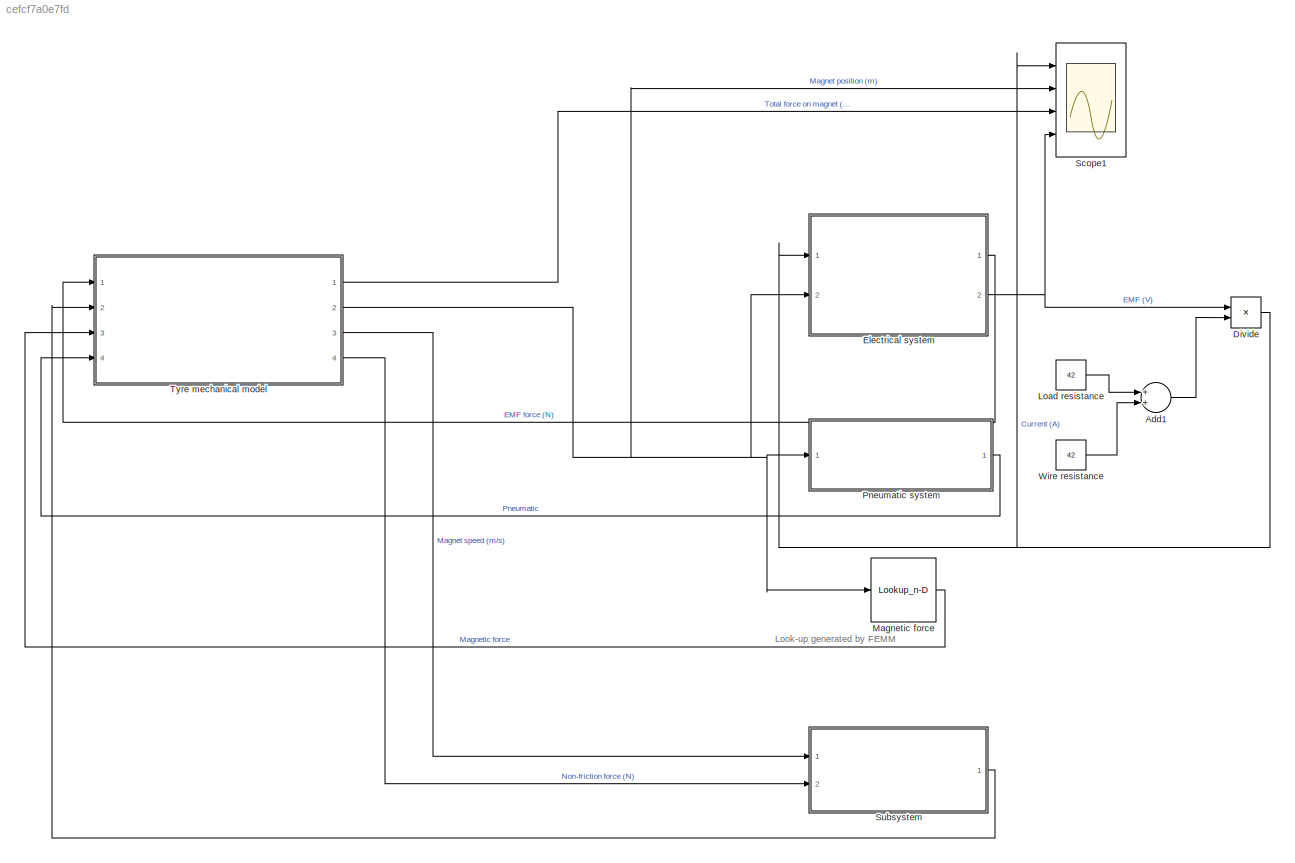
MODEL slx_cefcf7a0e7fd
KIND model
CONFIG AbsTol = auto
CONFIG FixedStep = 0.0001
CONFIG MaxStep = 0.001
CONFIG MinStep = auto
CONFIG RelTol = 1e-3
CONFIG SampleTimeConstraint = Unconstrained
CONFIG Solver = ode4
CONFIG SolverMode = Auto
CONFIG SolverName = ode4
CONFIG StartTime = 0
CONFIG StopTime = 1
BLOCK [Sum] Add1
  InputSameDT = off
  OutDataTypeStr = Inherit: Inherit via internal rule
  Ports = [2, 1]
  SaturateOnIntegerOverflow = off
BLOCK [Product] Divide
  InputSameDT = off
  Inputs = */
  OutDataTypeStr = Inherit: Inherit via internal rule
  Ports = [2, 1]
  RndMeth = Floor
  SaturateOnIntegerOverflow = off
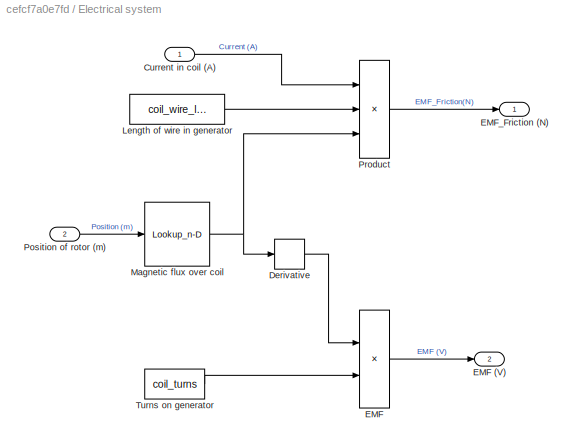
BLOCK [SubSystem] Electrical system
  Ports = [2, 2]
  RequestExecContextInheritance = off
BLOCK [Inport] Electrical system/Current in coil (A)
  IconDisplay = Port number
BLOCK [Derivative] Electrical system/Derivative
BLOCK [Product] Electrical system/EMF
  InputSameDT = off
  OutDataTypeStr = Inherit: Inherit via internal rule
  Ports = [2, 1]
  RndMeth = Floor
  SaturateOnIntegerOverflow = off
BLOCK [Outport] Electrical system/EMF (V)
  IconDisplay = Port number
  Port = 2
BLOCK [Outport] Electrical system/EMF_Friction (N)
  IconDisplay = Port number
BLOCK [Constant] Electrical system/Length of wire in generator
  Value = coil_wire_length
BLOCK [Lookup_n-D] Electrical system/Magnetic flux over coil
  BreakpointsForDimension1 = [-0.0087:0.0001:0.0086]
  DiagnosticForOutOfRangeInput = Error
  InitFcn = %Import the data from csv\nflux_linkage = csvread('linkage.csv');\nflux_linkage = flux_linkage(:, 1);
  InternalRulePriority = Speed
  NumberOfTableDimensions = 1
  Ports = [1, 1]
  RndMeth = Simplest
  Table = flux_linkage
BLOCK [Inport] Electrical system/Position of rotor (m)
  IconDisplay = Port number
  Port = 2
BLOCK [Product] Electrical system/Product
  InputSameDT = off
  Inputs = 3
  OutDataTypeStr = Inherit: Inherit via internal rule
  Ports = [3, 1]
  RndMeth = Floor
  SaturateOnIntegerOverflow = off
BLOCK [Constant] Electrical system/Turns on generator
  Value = coil_turns
BLOCK [Constant] Load resistance
  Value = 42
BLOCK [Lookup_n-D] Magnetic force
  BreakpointsForDimension1 = [-0.0087:0.0001:0.0086]
  DiagnosticForOutOfRangeInput = Error
  ExtrapMethod = Clip
  InitFcn = %Import the data from csv\ndata = csvread('force.csv');\ndata = data(:, 1);
  InternalRulePriority = Speed
  NumberOfTableDimensions = 1
  Ports = [1, 1]
  RndMeth = Simplest
  Table = data
  UseLastTableValue = on
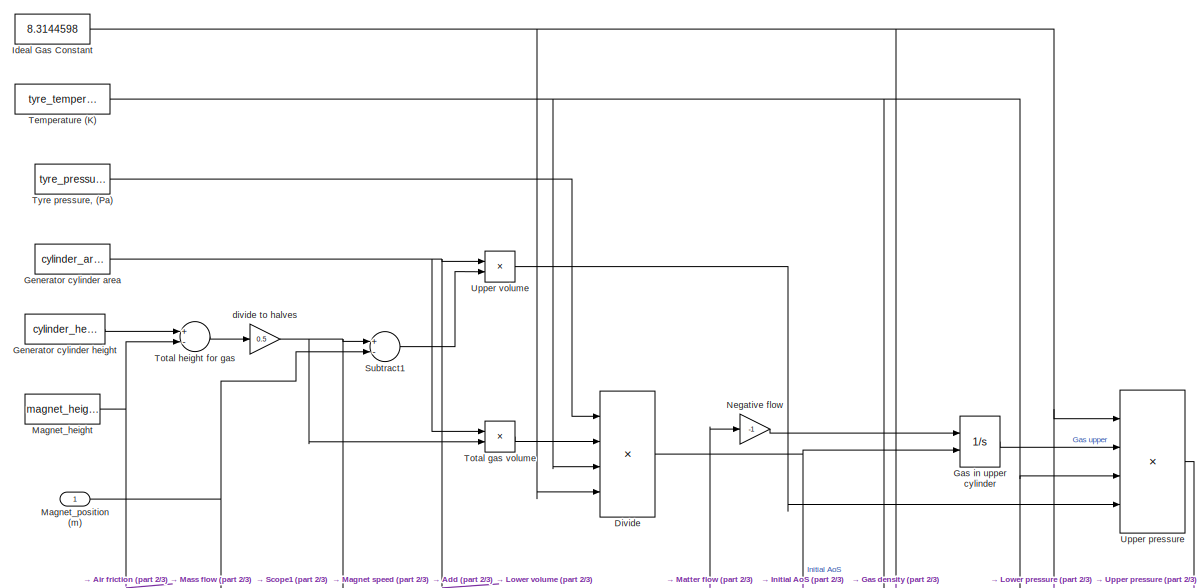
[diagram: Pneumatic system - part 1/3, top center region]
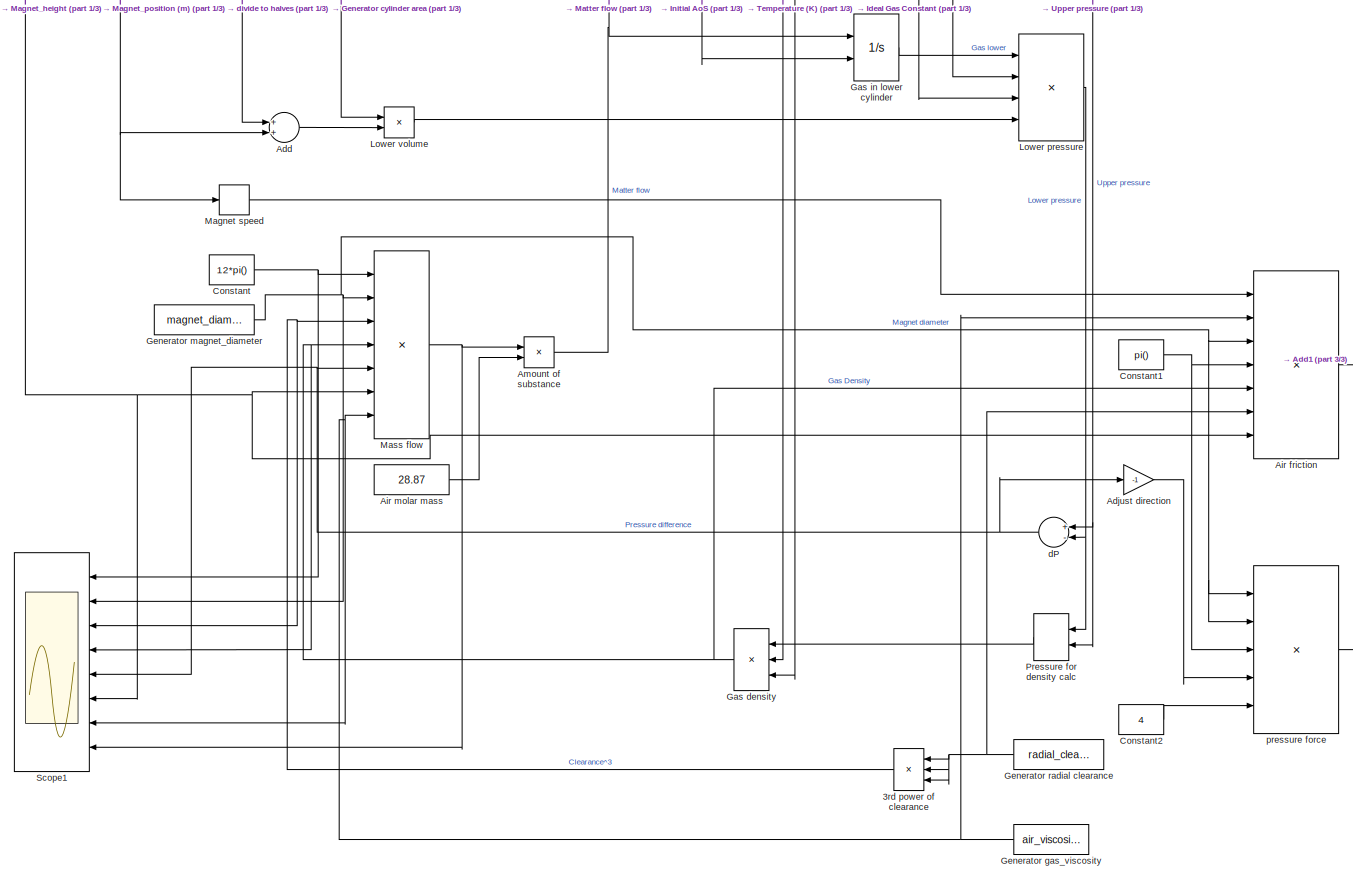
[diagram: Pneumatic system - part 2/3, full width, bottom band]
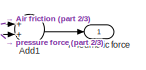
[diagram: Pneumatic system - part 3/3, bottom right region]
BLOCK [SubSystem] Pneumatic system
  Ports = [1, 1]
  RequestExecContextInheritance = off
BLOCK [Product] Pneumatic system/3rd power of clearance
  InputSameDT = off
  Inputs = 3
  OutDataTypeStr = Inherit: Inherit via internal rule
  Ports = [3, 1]
  RndMeth = Floor
  SaturateOnIntegerOverflow = off
BLOCK [Sum] Pneumatic system/Add
  InputSameDT = off
  OutDataTypeStr = Inherit: Inherit via internal rule
  Ports = [2, 1]
  SaturateOnIntegerOverflow = off
BLOCK [Sum] Pneumatic system/Add1
  InputSameDT = off
  OutDataTypeStr = Inherit: Inherit via internal rule
  Ports = [2, 1]
  SaturateOnIntegerOverflow = off
BLOCK [Gain] Pneumatic system/Adjust direction
  Gain = -1
  OutDataTypeStr = Inherit: Inherit via internal rule
  ParamDataTypeStr = Inherit: Inherit via internal rule
  SaturateOnIntegerOverflow = off
BLOCK [Product] Pneumatic system/Air friction
  InputSameDT = off
  Inputs = ******/
  OutDataTypeStr = Inherit: Inherit via internal rule
  Ports = [7, 1]
  RndMeth = Floor
  SaturateOnIntegerOverflow = off
BLOCK [Constant] Pneumatic system/Air molar mass
  Value = 28.87
BLOCK [Product] Pneumatic system/Amount of substance
  InputSameDT = off
  Inputs = */
  OutDataTypeStr = Inherit: Inherit via internal rule
  Ports = [2, 1]
  RndMeth = Floor
  SaturateOnIntegerOverflow = off
BLOCK [Constant] Pneumatic system/Constant
  Value = 12*pi()
BLOCK [Constant] Pneumatic system/Constant1
  Value = pi()
BLOCK [Constant] Pneumatic system/Constant2
  Value = 4
BLOCK [Product] Pneumatic system/Divide
  InputSameDT = off
  Inputs = **//
  OutDataTypeStr = Inherit: Inherit via internal rule
  Ports = [4, 1]
  RndMeth = Floor
  SaturateOnIntegerOverflow = off
BLOCK [Product] Pneumatic system/Gas density
  InputSameDT = off
  Inputs = *//
  OutDataTypeStr = Inherit: Inherit via internal rule
  Ports = [3, 1]
  RndMeth = Floor
  SaturateOnIntegerOverflow = off
BLOCK [Integrator] Pneumatic system/Gas in lower cylinder
  InitialConditionSource = external
  Ports = [2, 1]
BLOCK [Integrator] Pneumatic system/Gas in upper cylinder
  InitialConditionSource = external
  Ports = [2, 1]
BLOCK [Constant] Pneumatic system/Generator cylinder area
  Value = cylinder_area
BLOCK [Constant] Pneumatic system/Generator cylinder height
  Value = cylinder_height
BLOCK [Constant] Pneumatic system/Generator gas_viscosity 
  Value = air_viscosity
BLOCK [Constant] Pneumatic system/Generator magnet_diameter
  Value = magnet_diameter
BLOCK [Constant] Pneumatic system/Generator radial clearance
  Value = radial_clearance
BLOCK [Constant] Pneumatic system/Ideal Gas Constant
  Value = 8.3144598
BLOCK [Product] Pneumatic system/Lower pressure
  InputSameDT = off
  Inputs = ***/
  OutDataTypeStr = Inherit: Inherit via internal rule
  Ports = [4, 1]
  RndMeth = Floor
  SaturateOnIntegerOverflow = off
BLOCK [Product] Pneumatic system/Lower volume
  InputSameDT = off
  OutDataTypeStr = Inherit: Inherit via internal rule
  Ports = [2, 1]
  RndMeth = Floor
  SaturateOnIntegerOverflow = off
BLOCK [Derivative] Pneumatic system/Magnet speed
BLOCK [Constant] Pneumatic system/Magnet_height
  Value = magnet_height
BLOCK [Inport] Pneumatic system/Magnet_position (m)
  IconDisplay = Port number
BLOCK [Product] Pneumatic system/Mass flow
  InputSameDT = off
  Inputs = *****//
  OutDataTypeStr = Inherit: Inherit via internal rule
  Ports = [7, 1]
  RndMeth = Floor
  SaturateOnIntegerOverflow = off
BLOCK [Gain] Pneumatic system/Negative flow
  Gain = -1
  OutDataTypeStr = Inherit: Inherit via internal rule
  ParamDataTypeStr = Inherit: Inherit via internal rule
  SaturateOnIntegerOverflow = off
BLOCK [Outport] Pneumatic system/Pneumatic force
  IconDisplay = Port number
BLOCK [MinMax] Pneumatic system/Pressure for density calc
  Function = max
  InputSameDT = off
  Inputs = 2
  Ports = [2, 1]
  SaturateOnIntegerOverflow = off
BLOCK [Scope] Pneumatic system/Scope1
  Floating = off
  LimitDataPoints = off
  NumInputPorts = 8
  Ports = [8]
  SaveName = ScopeData1
  YMax = 37.6991~0.011~1.25e-10~150~250000~0.00238~3.5~0.25
  YMin = 37.6991~0.011~1.25e-10~80~-200000~0.00238~3.5~-0.15
BLOCK [Sum] Pneumatic system/Subtract1
  InputSameDT = off
  Inputs = +-
  OutDataTypeStr = Inherit: Inherit via internal rule
  Ports = [2, 1]
  SaturateOnIntegerOverflow = off
BLOCK [Constant] Pneumatic system/Temperature (K) 
  Value = tyre_temperature
BLOCK [Product] Pneumatic system/Total gas volume
  InputSameDT = off
  OutDataTypeStr = Inherit: Inherit via internal rule
  Ports = [2, 1]
  RndMeth = Floor
  SaturateOnIntegerOverflow = off
BLOCK [Sum] Pneumatic system/Total height for gas
  InputSameDT = off
  Inputs = +-
  OutDataTypeStr = Inherit: Inherit via internal rule
  Ports = [2, 1]
  SaturateOnIntegerOverflow = off
BLOCK [Constant] Pneumatic system/Tyre pressure, (Pa)
  Value = tyre_pressure
BLOCK [Product] Pneumatic system/Upper pressure
  InputSameDT = off
  Inputs = ***/
  OutDataTypeStr = Inherit: Inherit via internal rule
  Ports = [4, 1]
  RndMeth = Floor
  SaturateOnIntegerOverflow = off
BLOCK [Product] Pneumatic system/Upper volume
  InputSameDT = off
  OutDataTypeStr = Inherit: Inherit via internal rule
  Ports = [2, 1]
  RndMeth = Floor
  SaturateOnIntegerOverflow = off
BLOCK [Sum] Pneumatic system/dP
  InputSameDT = off
  Inputs = +-
  OutDataTypeStr = Inherit: Inherit via internal rule
  Ports = [2, 1]
  SaturateOnIntegerOverflow = off
BLOCK [Gain] Pneumatic system/divide to halves
  Gain = 0.5
  OutDataTypeStr = Inherit: Inherit via internal rule
  ParamDataTypeStr = Inherit: Inherit via internal rule
  SaturateOnIntegerOverflow = off
BLOCK [Product] Pneumatic system/pressure force
  InputSameDT = off
  Inputs = ****/
  OutDataTypeStr = Inherit: Inherit via internal rule
  Ports = [5, 1]
  RndMeth = Floor
  SaturateOnIntegerOverflow = off
BLOCK [Scope] Scope1
  Floating = off
  MaxDataPoints = 100000
  NumInputPorts = 4
  Ports = [4]
  SaveName = ScopeData2
  YMax = 3~1e-09~1e-06~0.00175
  YMin = -3.5~-1e-08~-4.5e-06~-0.0025
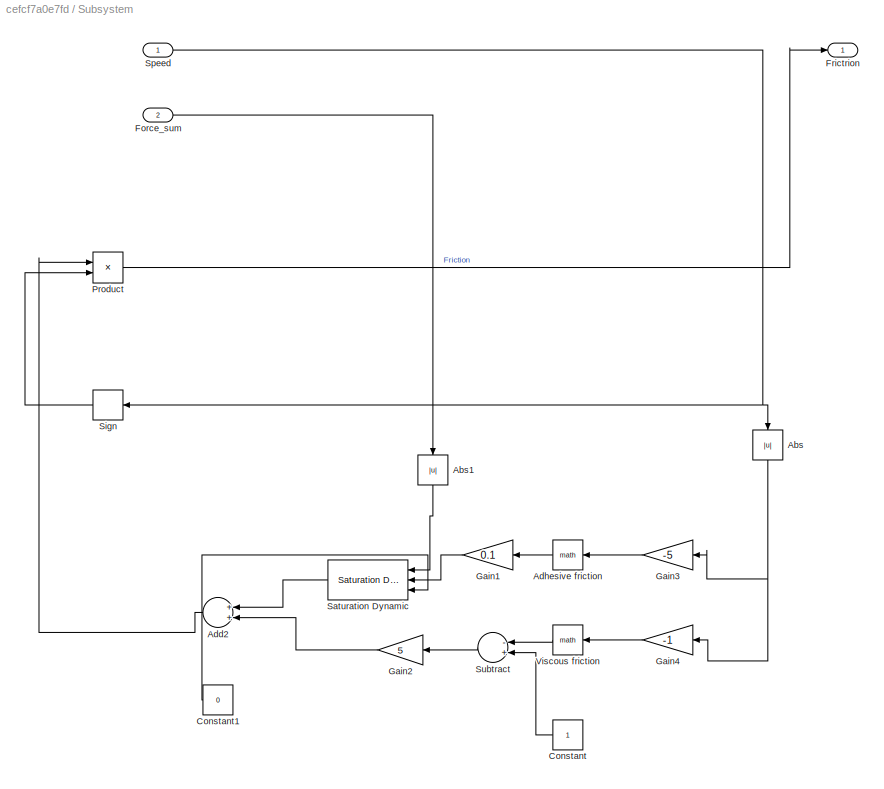
BLOCK [SubSystem] Subsystem
  Ports = [2, 1]
  RequestExecContextInheritance = off
BLOCK [Abs] Subsystem/Abs
  SaturateOnIntegerOverflow = off
BLOCK [Abs] Subsystem/Abs1
  SaturateOnIntegerOverflow = off
BLOCK [Sum] Subsystem/Add2
  InputSameDT = off
  OutDataTypeStr = Inherit: Inherit via internal rule
  Ports = [2, 1]
  SaturateOnIntegerOverflow = off
BLOCK [Math] Subsystem/Adhesive friction
  Ports = [1, 1]
BLOCK [Constant] Subsystem/Constant
BLOCK [Constant] Subsystem/Constant1
  Value = 0
BLOCK [Inport] Subsystem/Force_sum
  IconDisplay = Port number
  Port = 2
BLOCK [Outport] Subsystem/Frictrion
  IconDisplay = Port number
BLOCK [Gain] Subsystem/Gain1
  Gain = 0.1
  OutDataTypeStr = Inherit: Inherit via internal rule
  ParamDataTypeStr = Inherit: Inherit via internal rule
  SaturateOnIntegerOverflow = off
BLOCK [Gain] Subsystem/Gain2
  Gain = 5
  OutDataTypeStr = Inherit: Inherit via internal rule
  ParamDataTypeStr = Inherit: Inherit via internal rule
  SaturateOnIntegerOverflow = off
BLOCK [Gain] Subsystem/Gain3
  Gain = -5
  OutDataTypeStr = Inherit: Inherit via internal rule
  ParamDataTypeStr = Inherit: Inherit via internal rule
  SaturateOnIntegerOverflow = off
BLOCK [Gain] Subsystem/Gain4
  Gain = -1
  OutDataTypeStr = Inherit: Inherit via internal rule
  ParamDataTypeStr = Inherit: Inherit via internal rule
  SaturateOnIntegerOverflow = off
BLOCK [Product] Subsystem/Product
  InputSameDT = off
  OutDataTypeStr = Inherit: Inherit via internal rule
  Ports = [2, 1]
  RndMeth = Floor
  SaturateOnIntegerOverflow = off
BLOCK [Reference] Subsystem/Saturation Dynamic  REF=simulink/Discontinuities/Saturation
Dynamic
  DoSatur = off
  LockScale = off
  OutDataType = fixdt(1, 16)
  OutDataTypeStr = Inherit: Same as second input
  OutMax = []
  OutMin = []
  OutScaling = 2^-10
  OutputDataTypeScalingMode = Same as second input
  Ports = [3, 1]
  RndMeth = Floor
  SourceBlock = simulink/Discontinuities/Saturation\nDynamic
  SourceType = Saturation Dynamic
BLOCK [Signum] Subsystem/Sign
BLOCK [Inport] Subsystem/Speed
  IconDisplay = Port number
BLOCK [Sum] Subsystem/Subtract
  InputSameDT = off
  Inputs = -+
  OutDataTypeStr = Inherit: Inherit via internal rule
  Ports = [2, 1]
  SaturateOnIntegerOverflow = off
BLOCK [Math] Subsystem/Viscous friction
  Ports = [1, 1]
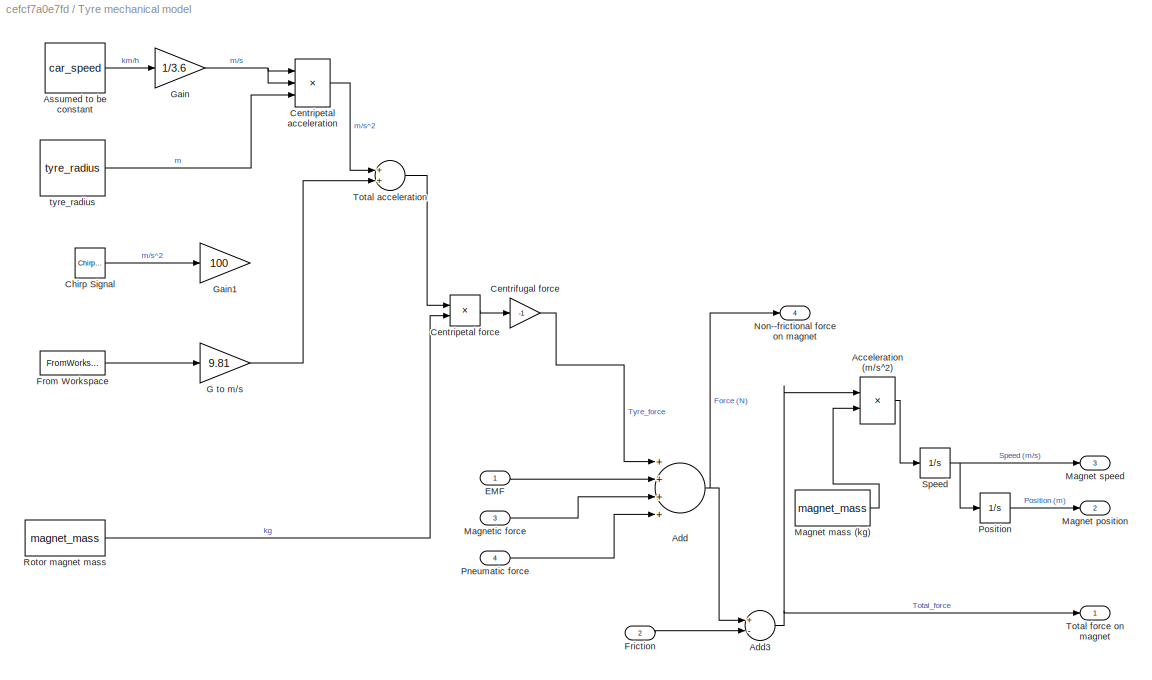
BLOCK [SubSystem] Tyre mechanical model
  Ports = [4, 4]
  RequestExecContextInheritance = off
BLOCK [Product] Tyre mechanical model/Acceleration (m//s^2)
  InputSameDT = off
  Inputs = */
  OutDataTypeStr = Inherit: Inherit via internal rule
  Ports = [2, 1]
  RndMeth = Floor
  SaturateOnIntegerOverflow = off
BLOCK [Sum] Tyre mechanical model/Add
  InputSameDT = off
  Inputs = ++++
  OutDataTypeStr = Inherit: Inherit via internal rule
  Ports = [4, 1]
  SaturateOnIntegerOverflow = off
BLOCK [Sum] Tyre mechanical model/Add3
  InputSameDT = off
  Inputs = +-
  OutDataTypeStr = Inherit: Inherit via internal rule
  Ports = [2, 1]
  SaturateOnIntegerOverflow = off
BLOCK [Constant] Tyre mechanical model/Assumed to be constant
  Value = car_speed
BLOCK [Gain] Tyre mechanical model/Centrifugal force
  Gain = -1
  OutDataTypeStr = Inherit: Inherit via internal rule
  ParamDataTypeStr = Inherit: Inherit via internal rule
  SaturateOnIntegerOverflow = off
BLOCK [Product] Tyre mechanical model/Centripetal acceleration
  InputSameDT = off
  Inputs = **/
  OutDataTypeStr = Inherit: Inherit via internal rule
  Ports = [3, 1]
  RndMeth = Floor
  SaturateOnIntegerOverflow = off
BLOCK [Product] Tyre mechanical model/Centripetal force
  InputSameDT = off
  OutDataTypeStr = Inherit: Inherit via internal rule
  Ports = [2, 1]
  RndMeth = Floor
  SaturateOnIntegerOverflow = off
BLOCK [Reference] Tyre mechanical model/Chirp Signal  REF=simulink/Sources/Chirp Signal
  Ports = [0, 1]
  SourceBlock = simulink/Sources/Chirp Signal
  SourceType = chirp
  T = 10
  VectorParams1D = on
  f1 = 10
  f2 = 600
BLOCK [Inport] Tyre mechanical model/EMF
  IconDisplay = Port number
BLOCK [Inport] Tyre mechanical model/Friction
  IconDisplay = Port number
  Port = 2
BLOCK [FromWorkspace] Tyre mechanical model/From Workspace
  OutputAfterFinalValue = Setting to zero
  SampleTime = 0
  VariableName = acc_data
  ZeroCross = on
BLOCK [Gain] Tyre mechanical model/G to m//s
  Gain = 9.81
  OutDataTypeStr = Inherit: Inherit via internal rule
  ParamDataTypeStr = Inherit: Inherit via internal rule
  SaturateOnIntegerOverflow = off
BLOCK [Gain] Tyre mechanical model/Gain
  Gain = 1/3.6
  OutDataTypeStr = Inherit: Inherit via internal rule
  ParamDataTypeStr = Inherit: Inherit via internal rule
  SaturateOnIntegerOverflow = off
BLOCK [Gain] Tyre mechanical model/Gain1
  Gain = 100
  OutDataTypeStr = Inherit: Inherit via internal rule
  ParamDataTypeStr = Inherit: Inherit via internal rule
  SaturateOnIntegerOverflow = off
BLOCK [Constant] Tyre mechanical model/Magnet mass (kg)
  Value = magnet_mass
BLOCK [Outport] Tyre mechanical model/Magnet position
  IconDisplay = Port number
  Port = 2
BLOCK [Outport] Tyre mechanical model/Magnet speed
  IconDisplay = Port number
  Port = 3
BLOCK [Inport] Tyre mechanical model/Magnetic force
  IconDisplay = Port number
  Port = 3
BLOCK [Outport] Tyre mechanical model/Non--frictional force on magnet
  IconDisplay = Port number
  Port = 4
BLOCK [Inport] Tyre mechanical model/Pneumatic force
  IconDisplay = Port number
  Port = 4
BLOCK [Integrator] Tyre mechanical model/Position
  Ports = [1, 1]
BLOCK [Constant] Tyre mechanical model/Rotor magnet mass
  Value = magnet_mass
BLOCK [Integrator] Tyre mechanical model/Speed
  Ports = [1, 1]
BLOCK [Sum] Tyre mechanical model/Total acceleration
  InputSameDT = off
  OutDataTypeStr = Inherit: Inherit via internal rule
  Ports = [2, 1]
  SaturateOnIntegerOverflow = off
BLOCK [Outport] Tyre mechanical model/Total force on magnet 
  IconDisplay = Port number
BLOCK [Constant] Tyre mechanical model/tyre_radius
  Value = tyre_radius
BLOCK [Constant] Wire resistance
  Value = 42
ANNOTATION (root): Look-up generated by FEMM
LINE Add1:1 -> Divide:2
NET Divide:1 -> Electrical system:1, Scope1:1
LINE Electrical system/Current in coil (A):1 -> Electrical system/Product:1
LINE Electrical system/Derivative:1 -> Electrical system/EMF:1
LINE Electrical system/EMF:1 -> Electrical system/EMF (V):1
LINE Electrical system/Length of wire in generator:1 -> Electrical system/Product:2
NET Electrical system/Magnetic flux over coil:1 -> Electrical system/Derivative:1, Electrical system/Product:3
LINE Electrical system/Position of rotor (m):1 -> Electrical system/Magnetic flux over coil:1
LINE Electrical system/Product:1 -> Electrical system/EMF_Friction (N):1
LINE Electrical system/Turns on generator:1 -> Electrical system/EMF:2
LINE Electrical system:1 -> Tyre mechanical model:1
NET Electrical system:2 -> Divide:1, Scope1:4
LINE Load resistance:1 -> Add1:1
LINE Magnetic force:1 -> Tyre mechanical model:3
NET Pneumatic system/3rd power of clearance:1 -> Pneumatic system/Mass flow:3, Pneumatic system/Scope1:3
LINE Pneumatic system/Add1:1 -> Pneumatic system/Pneumatic force:1
LINE Pneumatic system/Add:1 -> Pneumatic system/Lower volume:2
LINE Pneumatic system/Adjust direction:1 -> Pneumatic system/pressure force:4
LINE Pneumatic system/Air friction:1 -> Pneumatic system/Add1:1
LINE Pneumatic system/Air molar mass:1 -> Pneumatic system/Amount of substance:2
NET Pneumatic system/Amount of substance:1 -> Pneumatic system/Gas in lower cylinder:1, Pneumatic system/Negative flow:1
NET Pneumatic system/Constant1:1 -> Pneumatic system/Air friction:4, Pneumatic system/pressure force:3
LINE Pneumatic system/Constant2:1 -> Pneumatic system/pressure force:5
NET Pneumatic system/Constant:1 -> Pneumatic system/Mass flow:1, Pneumatic system/Scope1:1
NET Pneumatic system/Divide:1 -> Pneumatic system/Gas in lower cylinder:2, Pneumatic system/Gas in upper cylinder:2
NET Pneumatic system/Gas density:1 -> Pneumatic system/Air friction:5, Pneumatic system/Mass flow:4, Pneumatic system/Scope1:4
LINE Pneumatic system/Gas in lower cylinder:1 -> Pneumatic system/Lower pressure:1
LINE Pneumatic system/Gas in upper cylinder:1 -> Pneumatic system/Upper pressure:2
NET Pneumatic system/Generator cylinder area:1 -> Pneumatic system/Lower volume:1, Pneumatic system/Total gas volume:1, Pneumatic system/Upper volume:1
LINE Pneumatic system/Generator cylinder height:1 -> Pneumatic system/Total height for gas:1
NET Pneumatic system/Generator gas_viscosity :1 -> Pneumatic system/Air friction:2, Pneumatic system/Mass flow:7, Pneumatic system/Scope1:7
NET Pneumatic system/Generator magnet_diameter:1 -> Pneumatic system/Air friction:3, Pneumatic system/Mass flow:2, Pneumatic system/Scope1:2, Pneumatic system/pressure force:1, Pneumatic system/pressure force:2
NET Pneumatic system/Generator radial clearance:1 -> Pneumatic system/3rd power of clearance:1, Pneumatic system/3rd power of clearance:2, Pneumatic system/3rd power of clearance:3, Pneumatic system/Air friction:6
NET Pneumatic system/Ideal Gas Constant:1 -> Pneumatic system/Divide:4, Pneumatic system/Gas density:3, Pneumatic system/Lower pressure:2, Pneumatic system/Upper pressure:1
NET Pneumatic system/Lower pressure:1 -> Pneumatic system/Pressure for density calc:1, Pneumatic system/dP:2
LINE Pneumatic system/Lower volume:1 -> Pneumatic system/Lower pressure:4
LINE Pneumatic system/Magnet speed:1 -> Pneumatic system/Air friction:1
NET Pneumatic system/Magnet_height:1 -> Pneumatic system/Air friction:7, Pneumatic system/Mass flow:6, Pneumatic system/Scope1:6, Pneumatic system/Total height for gas:2
NET Pneumatic system/Magnet_position (m):1 -> Pneumatic system/Add:2, Pneumatic system/Magnet speed:1, Pneumatic system/Subtract1:2
NET Pneumatic system/Mass flow:1 -> Pneumatic system/Amount of substance:1, Pneumatic system/Scope1:8
LINE Pneumatic system/Negative flow:1 -> Pneumatic system/Gas in upper cylinder:1
LINE Pneumatic system/Pressure for density calc:1 -> Pneumatic system/Gas density:1
LINE Pneumatic system/Subtract1:1 -> Pneumatic system/Upper volume:2
NET Pneumatic system/Temperature (K) :1 -> Pneumatic system/Divide:3, Pneumatic system/Gas density:2, Pneumatic system/Lower pressure:3, Pneumatic system/Upper pressure:3
LINE Pneumatic system/Total gas volume:1 -> Pneumatic system/Divide:2
LINE Pneumatic system/Total height for gas:1 -> Pneumatic system/divide to halves:1
LINE Pneumatic system/Tyre pressure, (Pa):1 -> Pneumatic system/Divide:1
NET Pneumatic system/Upper pressure:1 -> Pneumatic system/Pressure for density calc:2, Pneumatic system/dP:1
LINE Pneumatic system/Upper volume:1 -> Pneumatic system/Upper pressure:4
NET Pneumatic system/dP:1 -> Pneumatic system/Adjust direction:1, Pneumatic system/Mass flow:5, Pneumatic system/Scope1:5
NET Pneumatic system/divide to halves:1 -> Pneumatic system/Add:1, Pneumatic system/Subtract1:1, Pneumatic system/Total gas volume:2
LINE Pneumatic system/pressure force:1 -> Pneumatic system/Add1:2
LINE Pneumatic system:1 -> Tyre mechanical model:4
LINE Subsystem/Abs1:1 -> Subsystem/Saturation Dynamic:1
NET Subsystem/Abs:1 -> Subsystem/Gain3:1, Subsystem/Gain4:1
LINE Subsystem/Add2:1 -> Subsystem/Product:1
LINE Subsystem/Adhesive friction:1 -> Subsystem/Gain1:1
LINE Subsystem/Constant1:1 -> Subsystem/Saturation Dynamic:3
LINE Subsystem/Constant:1 -> Subsystem/Subtract:2
LINE Subsystem/Force_sum:1 -> Subsystem/Abs1:1
LINE Subsystem/Gain1:1 -> Subsystem/Saturation Dynamic:2
LINE Subsystem/Gain2:1 -> Subsystem/Add2:2
LINE Subsystem/Gain3:1 -> Subsystem/Adhesive friction:1
LINE Subsystem/Gain4:1 -> Subsystem/Viscous friction:1
LINE Subsystem/Product:1 -> Subsystem/Frictrion:1
LINE Subsystem/Saturation Dynamic:1 -> Subsystem/Add2:1
LINE Subsystem/Sign:1 -> Subsystem/Product:2
NET Subsystem/Speed:1 -> Subsystem/Abs:1, Subsystem/Sign:1
LINE Subsystem/Subtract:1 -> Subsystem/Gain2:1
LINE Subsystem/Viscous friction:1 -> Subsystem/Subtract:1
LINE Subsystem:1 -> Tyre mechanical model:2
LINE Tyre mechanical model/Acceleration (m//s^2):1 -> Tyre mechanical model/Speed:1
NET Tyre mechanical model/Add3:1 -> Tyre mechanical model/Acceleration (m//s^2):1, Tyre mechanical model/Total force on magnet :1
NET Tyre mechanical model/Add:1 -> Tyre mechanical model/Add3:1, Tyre mechanical model/Non--frictional force on magnet:1
LINE Tyre mechanical model/Assumed to be constant:1 -> Tyre mechanical model/Gain:1
LINE Tyre mechanical model/Centrifugal force:1 -> Tyre mechanical model/Add:1
LINE Tyre mechanical model/Centripetal acceleration:1 -> Tyre mechanical model/Total acceleration:1
LINE Tyre mechanical model/Centripetal force:1 -> Tyre mechanical model/Centrifugal force:1
LINE Tyre mechanical model/Chirp Signal:1 -> Tyre mechanical model/Gain1:1
LINE Tyre mechanical model/EMF:1 -> Tyre mechanical model/Add:2
LINE Tyre mechanical model/Friction:1 -> Tyre mechanical model/Add3:2
LINE Tyre mechanical model/From Workspace:1 -> Tyre mechanical model/G to m//s:1
LINE Tyre mechanical model/G to m//s:1 -> Tyre mechanical model/Total acceleration:2
NET Tyre mechanical model/Gain:1 -> Tyre mechanical model/Centripetal acceleration:1, Tyre mechanical model/Centripetal acceleration:2
LINE Tyre mechanical model/Magnet mass (kg):1 -> Tyre mechanical model/Acceleration (m//s^2):2
LINE Tyre mechanical model/Magnetic force:1 -> Tyre mechanical model/Add:3
LINE Tyre mechanical model/Pneumatic force:1 -> Tyre mechanical model/Add:4
LINE Tyre mechanical model/Position:1 -> Tyre mechanical model/Magnet position:1
LINE Tyre mechanical model/Rotor magnet mass:1 -> Tyre mechanical model/Centripetal force:2
NET Tyre mechanical model/Speed:1 -> Tyre mechanical model/Magnet speed:1, Tyre mechanical model/Position:1
LINE Tyre mechanical model/Total acceleration:1 -> Tyre mechanical model/Centripetal force:1
LINE Tyre mechanical model/tyre_radius:1 -> Tyre mechanical model/Centripetal acceleration:3
LINE Tyre mechanical model:1 -> Scope1:3
NET Tyre mechanical model:2 -> Electrical system:2, Magnetic force:1, Pneumatic system:1, Scope1:2
LINE Tyre mechanical model:3 -> Subsystem:1
LINE Tyre mechanical model:4 -> Subsystem:2
LINE Wire resistance:1 -> Add1:2
note: NET lines group one-source signal fan-out (src -> all destinations, sorted); 1:1 wires keep LINE
